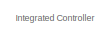
[diagram: root canvas - part 1/5, top left region]
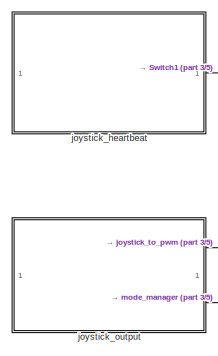
[diagram: root canvas - part 2/5, top left region]
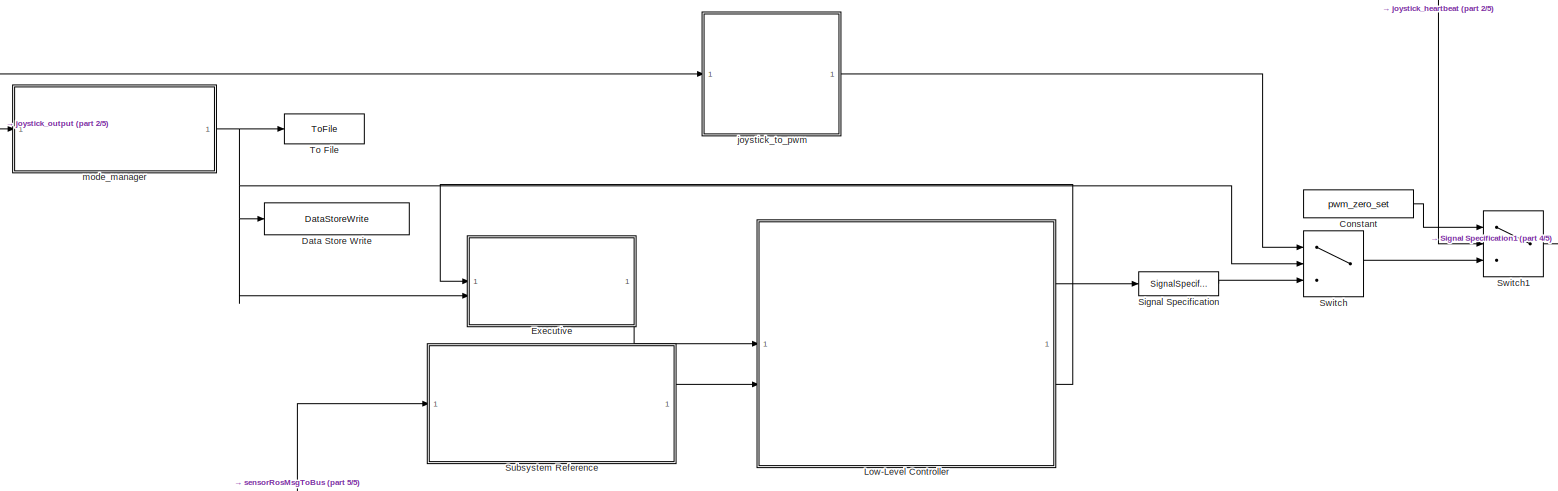
[diagram: root canvas - part 3/5, central region]
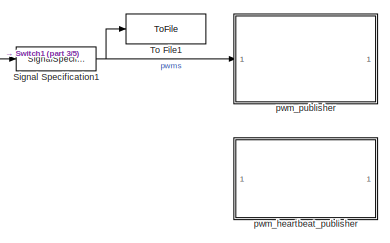
[diagram: root canvas - part 4/5, middle right region]
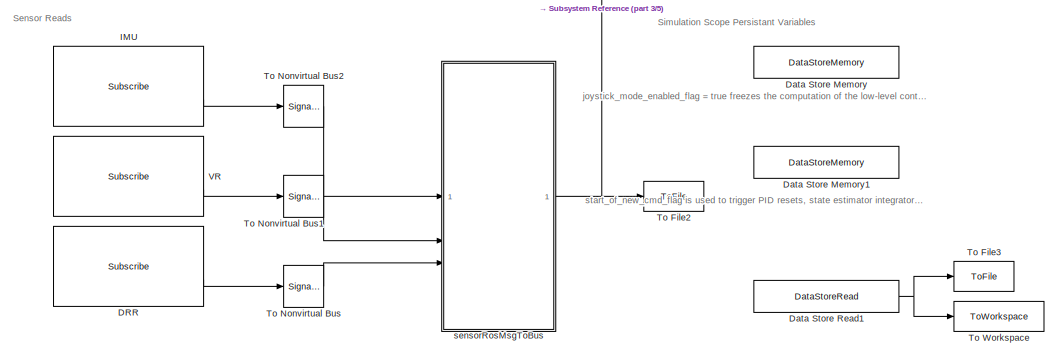
[diagram: root canvas - part 5/5, bottom left region]
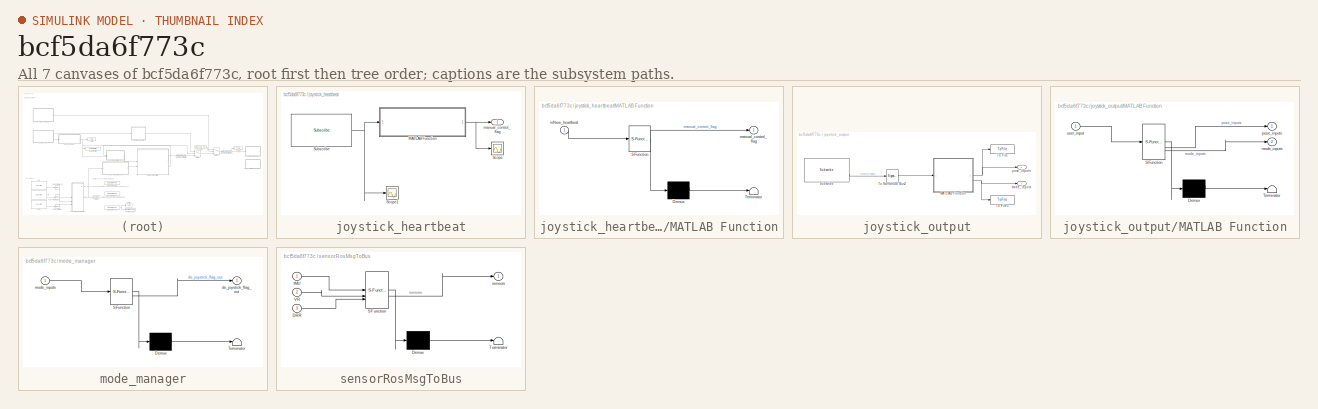
[diagram: thumbnail index - all 7 canvases of the model, root first then tree order]
MODEL slx_bcf5da6f773c
KIND model
CONFIG AbsTol = auto
CONFIG EnableMultiTasking = off
CONFIG FixedStep = dt_sim
CONFIG MaxStep = auto
CONFIG MinStep = auto
CONFIG RelTol = 1e-3
CONFIG SampleTimeConstraint = Unconstrained
CONFIG SolverName = FixedStepDiscrete
CONFIG StartTime = 0.0
CONFIG StopTime = tspan
BLOCK [Constant] Constant
  OutDataTypeStr = int32
  Value = pwm_zero_set
BLOCK [Reference] DRR  REF=ros2lib/Subscribe  (lib defined in slx_3c1549211f48)
  SourceBlock = ros2lib/Subscribe
  SourceType = ROS2 Subscribe
BLOCK [DataStoreMemory] Data Store Memory
  DataStoreName = joystick_mode_enabled_flag
  InitialValue = initial_joystick_mode_enabled_flag
  OutDataTypeStr = boolean
  ShowAdditionalParam = off
  WriteAfterWriteMsg = warning
BLOCK [DataStoreMemory] Data Store Memory1
  DataStoreName = start_new_cmd_flag
  InitialValue = true
  OutDataTypeStr = boolean
  ShowAdditionalParam = off
  WriteAfterWriteMsg = warning
BLOCK [DataStoreRead] Data Store Read1
  DataStoreName = start_new_cmd_flag
  IndexOptions = Index vector (dialog)
  Indices = 1
  OutputSizes = 1
BLOCK [DataStoreWrite] Data Store Write
  DataStoreName = joystick_mode_enabled_flag
  IndexOptions = Index vector (dialog)
  Indices = 1
  OutputSizes = 1
  SampleTime = dt_control
BLOCK [SubSystem] Executive
  ReferencedSubsystem = Executive
BLOCK [Reference] IMU  REF=ros2lib/Subscribe  (lib defined in slx_3c1549211f48)
  SourceBlock = ros2lib/Subscribe
  SourceType = ROS2 Subscribe
BLOCK [SubSystem] Low-Level Controller
  ReferencedSubsystem = controller
BLOCK [SignalSpecification] Signal Specification
  Dimensions = [8 1]
  OutDataTypeStr = int32
BLOCK [SignalSpecification] Signal Specification1
  Dimensions = [8 1]
  OutDataTypeStr = int32
BLOCK [SubSystem] Subsystem Reference
  ReferencedSubsystem = State_Estimator
BLOCK [Switch] Switch
  Criteria = u2 > Threshold
  InputSameDT = off
  SaturateOnIntegerOverflow = off
BLOCK [Switch] Switch1
  Criteria = u2 > Threshold
  InputSameDT = off
  SaturateOnIntegerOverflow = off
BLOCK [ToFile] To File
  Filename = <userpath>/Github/Robosub/SimulinkPlant/data/2026_05_09_19_45_26/joystick_mode_enabled_flag.mat
  MatrixName = joystick_mode_enabled_flag
  SampleTime = dt_control
  SaveFormat = Timeseries
BLOCK [ToFile] To File1
  Filename = <userpath>/Github/Robosub/SimulinkPlant/data/2026_05_09_19_45_26/pwms.mat
  MatrixName = pwms
  SampleTime = dt_control
  SaveFormat = Timeseries
BLOCK [ToFile] To File2
  Filename = <userpath>/Github/Robosub/SimulinkPlant/data/2026_05_09_19_45_26/sensors.mat
  MatrixName = sensors
  SaveFormat = Timeseries
BLOCK [ToFile] To File3
  Filename = <userpath>/Github/Robosub/SimulinkPlant/data/2026_05_09_19_45_26/start_new_cmd_flag.mat
  MatrixName = start_new_cmd_flag
  SaveFormat = Timeseries
BLOCK [SignalConversion] To Nonvirtual Bus
  ConversionOutput = Nonvirtual bus
  OutDataTypeStr = Bus: SL_Bus_custom_interfaces_DRR
  OverrideOpt = off
BLOCK [SignalConversion] To Nonvirtual Bus1
  ConversionOutput = Nonvirtual bus
  OutDataTypeStr = Bus: SL_Bus_custom_interfaces_VR
  OverrideOpt = off
BLOCK [SignalConversion] To Nonvirtual Bus2
  ConversionOutput = Nonvirtual bus
  OutDataTypeStr = Bus: SL_Bus_custom_interfaces_Imu
  OverrideOpt = off
BLOCK [ToWorkspace] To Workspace
  Commented = on
  FixptAsFi = on
  MaxDataPoints = inf
  SampleTime = dt_data
  SaveFormat = Timeseries
  VariableName = start_new_cmd_flag
BLOCK [Reference] VR  REF=ros2lib/Subscribe  (lib defined in slx_3c1549211f48)
  SourceBlock = ros2lib/Subscribe
  SourceType = ROS2 Subscribe
BLOCK [SubSystem] joystick_heartbeat
BLOCK [SubSystem] joystick_heartbeat/MATLAB Function
  ErrorFcn = Stateflow.Translate.translate
  PermitHierarchicalResolution = ExplicitOnly
  SFBlockType = MATLAB Function
  TreatAsAtomicUnit = on
BLOCK [Demux] joystick_heartbeat/MATLAB Function/ Demux 
  Outputs = 1
BLOCK [S-Function] joystick_heartbeat/MATLAB Function/ SFunction 
  EnableBusSupport = off
  FunctionName = sf_sfun
  Parameters = dt_control
  PortCounts = [1 2]
  SFcnIsStateOwnerBlock = off
  SFunctionDeploymentMode = off
  Tag = Stateflow S-Function 5
BLOCK [Terminator] joystick_heartbeat/MATLAB Function/ Terminator 
BLOCK [Inport] joystick_heartbeat/MATLAB Function/isNew_heartbeat
BLOCK [Outport] joystick_heartbeat/MATLAB Function/manual_control_flag
BLOCK [Scope] joystick_heartbeat/Scope
  ActiveDisplayYMaximum = 1.125
  ActiveDisplayYMinimum = -0.12499999999999997
  Floating = off
  GraphicalSettings = {"Style":{"BackgroundColor":[0.12941176470588237,0.12941176470588237,0.12941176470588237],"AxesColor":[0.07058823529411765,0.07058823529411765,0.07058823529411765],"LabelsColor":[0.8509803921568627,0.8509803921568627,0.8509803921568627],"PreserveColors":false,"Visible":[true],"LineStyle":["-"],"LineWidth":[1.5],"BarWidth":[0.9],"LineColor":["auto"],"LineFaceAlpha":[1],"LineEdgeAlpha":[1],"Marker":...<+1965ch>
  MultipleDisplayCache = [{"MaxYLimMag":1.125,"MaxYLimReal":1.125,"MinYLimMag":0,"MinYLimReal":-0.12499999999999997,"PlotAsMagnitudePhase":false,"ShowGrid":true,"ShowLegend":false,"Title":"%<SignalLabel>","YLabel":""}]
  NumInputPorts = 1
  ScopeFrameLocation = window
  WasSavedAsWebScope = on
  WindowPosition = [497.000000,73.000000,927.000000,1008.000000,]
BLOCK [Scope] joystick_heartbeat/Scope1
  ActiveDisplayYMaximum = 0.23950064914425354
  ActiveDisplayYMinimum = -0.031272765620221396
  DataLoggingVariableName = ScopeData1
  Floating = off
  GraphicalSettings = {"Style":{"BackgroundColor":[0.12941176470588237,0.12941176470588237,0.12941176470588237],"AxesColor":[0.07058823529411765,0.07058823529411765,0.07058823529411765],"LabelsColor":[0.8509803921568627,0.8509803921568627,0.8509803921568627],"PreserveColors":false,"Visible":[true],"LineStyle":["-"],"LineWidth":[1.5],"BarWidth":[0.9],"LineColor":["auto"],"LineFaceAlpha":[1],"LineEdgeAlpha":[1],"Marker":...<+1987ch>
  MultipleDisplayCache = [{"MaxYLimMag":1.125,"MaxYLimReal":0.23950064914425354,"MinYLimMag":0,"MinYLimReal":-0.031272765620221396,"PlotAsMagnitudePhase":false,"ShowGrid":true,"ShowLegend":false,"Title":"%<SignalLabel>","YLabel":""}]
  NumInputPorts = 1
  ScopeFrameLocation = window
  WasSavedAsWebScope = on
  WindowPosition = [67.000000,73.000000,1854.000000,1008.000000,]
BLOCK [Reference] joystick_heartbeat/Subscribe  REF=ros2lib/Subscribe  (lib defined in slx_3c1549211f48)
  SourceBlock = ros2lib/Subscribe
  SourceType = ROS2 Subscribe
BLOCK [Outport] joystick_heartbeat/manual_control_flag
BLOCK [SubSystem] joystick_output
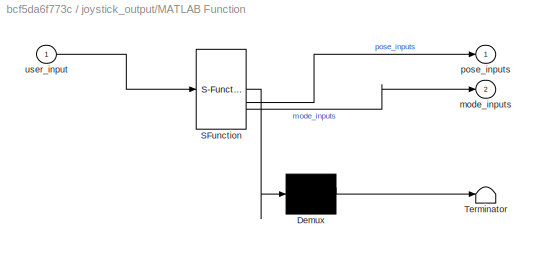
BLOCK [SubSystem] joystick_output/MATLAB Function
  ErrorFcn = Stateflow.Translate.translate
  PermitHierarchicalResolution = ExplicitOnly
  SFBlockType = MATLAB Function
  TreatAsAtomicUnit = on
BLOCK [Demux] joystick_output/MATLAB Function/ Demux 
  Outputs = 1
BLOCK [S-Function] joystick_output/MATLAB Function/ SFunction 
  EnableBusSupport = off
  FunctionName = sf_sfun
  PortCounts = [1 3]
  SFcnIsStateOwnerBlock = off
  SFunctionDeploymentMode = off
  Tag = Stateflow S-Function 4
BLOCK [Terminator] joystick_output/MATLAB Function/ Terminator 
BLOCK [Outport] joystick_output/MATLAB Function/mode_inputs
  Port = 2
BLOCK [Outport] joystick_output/MATLAB Function/pose_inputs
BLOCK [Inport] joystick_output/MATLAB Function/user_input
BLOCK [Reference] joystick_output/Subscribe  REF=ros2lib/Subscribe  (lib defined in slx_3c1549211f48)
  SourceBlock = ros2lib/Subscribe
  SourceType = ROS2 Subscribe
BLOCK [ToFile] joystick_output/To File
  Filename = <userpath>/Github/Robosub/SimulinkPlant/data/2026_05_09_19_45_26/pose_inputs.mat
  MatrixName = pose_inputs
  SampleTime = dt_control
  SaveFormat = Timeseries
BLOCK [ToFile] joystick_output/To File1
  Filename = <userpath>/Github/Robosub/SimulinkPlant/data/2026_05_09_19_45_26/mode_inputs.mat
  MatrixName = mode_inputs
  SampleTime = dt_control
  SaveFormat = Timeseries
BLOCK [SignalConversion] joystick_output/To Nonvirtual Bus2
  ConversionOutput = Nonvirtual bus
  OutDataTypeStr = Bus: SL_Bus_custom_interfaces_Gamepad
  OverrideOpt = off
BLOCK [Outport] joystick_output/mode_inputs
  Port = 2
BLOCK [Outport] joystick_output/pose_inputs
BLOCK [SubSystem] joystick_to_pwm
  ReferencedSubsystem = joystick_to_pwm
BLOCK [SubSystem] mode_manager
  ErrorFcn = Stateflow.Translate.translate
  PermitHierarchicalResolution = ExplicitOnly
  SFBlockType = MATLAB Function
  TreatAsAtomicUnit = on
BLOCK [Demux] mode_manager/ Demux 
  Outputs = 1
BLOCK [S-Function] mode_manager/ SFunction 
  EnableBusSupport = off
  FunctionName = sf_sfun
  PortCounts = [1 2]
  SFcnIsStateOwnerBlock = off
  SFunctionDeploymentMode = off
  Tag = Stateflow S-Function 8
BLOCK [Terminator] mode_manager/ Terminator 
BLOCK [Outport] mode_manager/do_joystick_flag_out
BLOCK [Inport] mode_manager/mode_inputs
BLOCK [SubSystem] pwm_heartbeat_publisher
  ReferencedSubsystem = pwm_heartbeat_publisher
BLOCK [SubSystem] pwm_publisher
  ReferencedSubsystem = pwm_publisher
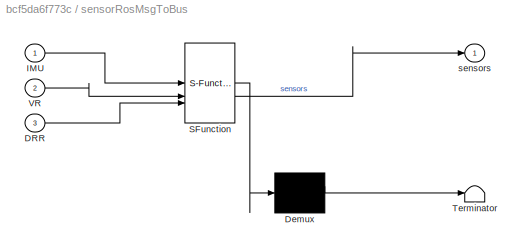
BLOCK [SubSystem] sensorRosMsgToBus
  ErrorFcn = Stateflow.Translate.translate
  PermitHierarchicalResolution = ExplicitOnly
  SFBlockType = MATLAB Function
  TreatAsAtomicUnit = on
BLOCK [Demux] sensorRosMsgToBus/ Demux 
  Outputs = 1
BLOCK [S-Function] sensorRosMsgToBus/ SFunction 
  EnableBusSupport = off
  FunctionName = sf_sfun
  PortCounts = [3 2]
  SFcnIsStateOwnerBlock = off
  SFunctionDeploymentMode = off
  Tag = Stateflow S-Function 12
BLOCK [Terminator] sensorRosMsgToBus/ Terminator 
BLOCK [Inport] sensorRosMsgToBus/DRR
  Port = 3
BLOCK [Inport] sensorRosMsgToBus/IMU
BLOCK [Inport] sensorRosMsgToBus/VR
  Port = 2
BLOCK [Outport] sensorRosMsgToBus/sensors
ANNOTATION (root): Integrated Controller
ANNOTATION (root): Sensor Reads
ANNOTATION (root): Simulation Scope Persistant Variables
ANNOTATION (root): joystick_mode_enabled_flag = true freezes the computation of the low-level controller but keeps the state estimator running.
ANNOTATION (root): start_of_new_cmd_flag is used to trigger PID resets, state estimator integrator resets, and creation of body-relative waypoints for certain trick types.
LINE Constant:1 -> Switch1:1
LINE DRR:2 -> To Nonvirtual Bus:1
NET Data Store Read1:1 -> To File3:1, To Workspace:1
LINE Executive:1 -> Low-Level Controller:1
LINE IMU:2 -> To Nonvirtual Bus2:1
LINE Low-Level Controller:1 -> Signal Specification:1
LINE Low-Level Controller:2 -> Executive:1
NET Signal Specification1:1 -> To File1:1, pwm_publisher:1
LINE Signal Specification:1 -> Switch:3
LINE Subsystem Reference:1 -> Low-Level Controller:2
LINE Switch1:1 -> Signal Specification1:1
LINE Switch:1 -> Switch1:3
LINE To Nonvirtual Bus1:1 -> sensorRosMsgToBus:2
LINE To Nonvirtual Bus2:1 -> sensorRosMsgToBus:1
LINE To Nonvirtual Bus:1 -> sensorRosMsgToBus:3
LINE VR:2 -> To Nonvirtual Bus1:1
NET joystick_heartbeat/MATLAB Function:1 -> joystick_heartbeat/Scope:1, joystick_heartbeat/manual_control_flag:1
NET joystick_heartbeat/Subscribe:1 -> joystick_heartbeat/MATLAB Function:1, joystick_heartbeat/Scope1:1
LINE joystick_heartbeat:1 -> Switch1:2
NET joystick_output/MATLAB Function:1 -> joystick_output/To File:1, joystick_output/pose_inputs:1
NET joystick_output/MATLAB Function:2 -> joystick_output/To File1:1, joystick_output/mode_inputs:1
LINE joystick_output/Subscribe:2 -> joystick_output/To Nonvirtual Bus2:1
LINE joystick_output/To Nonvirtual Bus2:1 -> joystick_output/MATLAB Function:1
LINE joystick_output:1 -> joystick_to_pwm:1
LINE joystick_output:2 -> mode_manager:1
LINE joystick_to_pwm:1 -> Switch:1
NET mode_manager:1 -> Data Store Write:1, Executive:2, Switch:2, To File:1
NET sensorRosMsgToBus:1 -> Subsystem Reference:1, To File2:1
note: NET lines group one-source signal fan-out (src -> all destinations, sorted); 1:1 wires keep LINE
CHART joystick_output/MATLAB Function states=1 transitions=1
  STATE_LABEL 'eML_blk_kernel()'
  STATE_LABEL 'SCRIPT:\nfunction [pose_inputs, mode_inputs] = fcn(user_input)\n\n[pose_inputs, mode_inputs] = gamepad_parser(user_input);'
CHART joystick_heartbeat/MATLAB Function states=1 transitions=1
  STATE_LABEL 'eML_blk_kernel()'
  STATE_LABEL 'SCRIPT:\nfunction manual_control_flag = fcn(isNew_heartbeat,dt_control)\n\nmanual_control_flag = heartbeat_interpreter(isNew_heartbeat,dt_control);\n'
CHART mode_manager states=1 transitions=1
  STATE_LABEL 'eML_blk_kernel()'
  STATE_LABEL 'SCRIPT:\nfunction do_joystick_flag_out   = fcn(mode_inputs)\n    \n[do_joystick_flag_out,~] = mode_manager(mode_inputs);\n'
CHART sensorRosMsgToBus states=1 transitions=1
  STATE_LABEL 'eML_blk_kernel()'
  STATE_LABEL 'SCRIPT:\nfunction sensors = fcn(IMU, VR, DRR)\n\nsensors = sensorRosMsgToBus(IMU, VR, DRR);\n'
CHART  states=0 transitions=0
CHART  states=0 transitions=0
CHART  states=0 transitions=0
CHART  states=0 transitions=0
